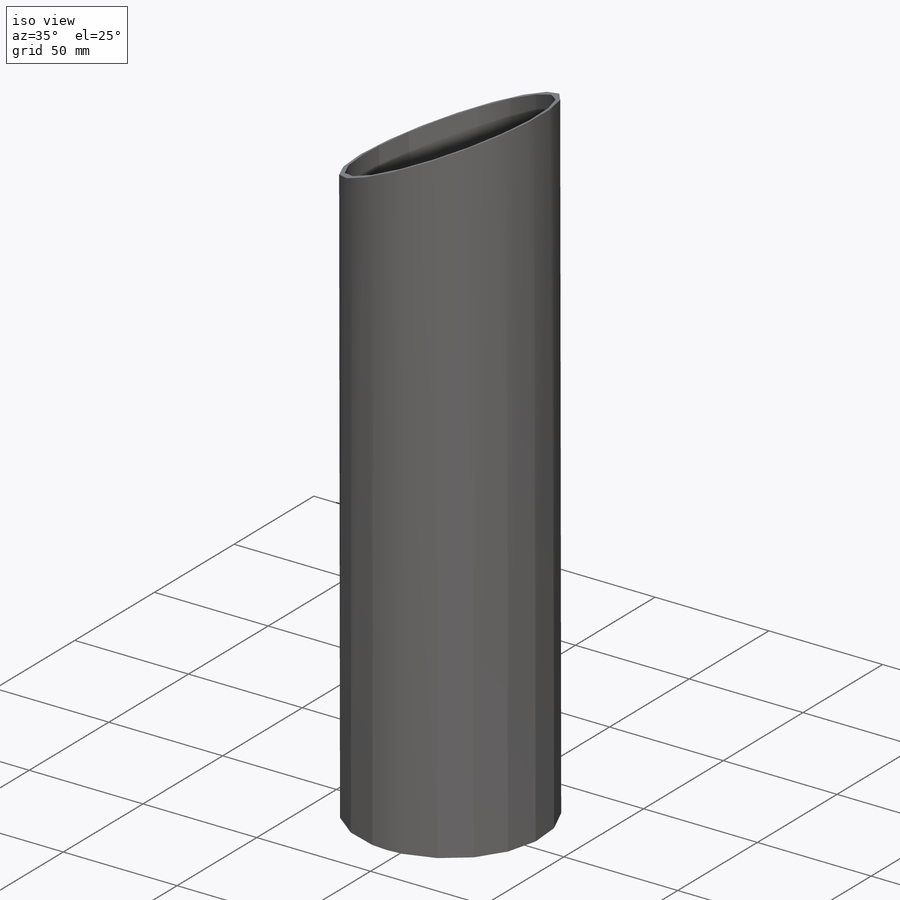
[diagram: iso view]
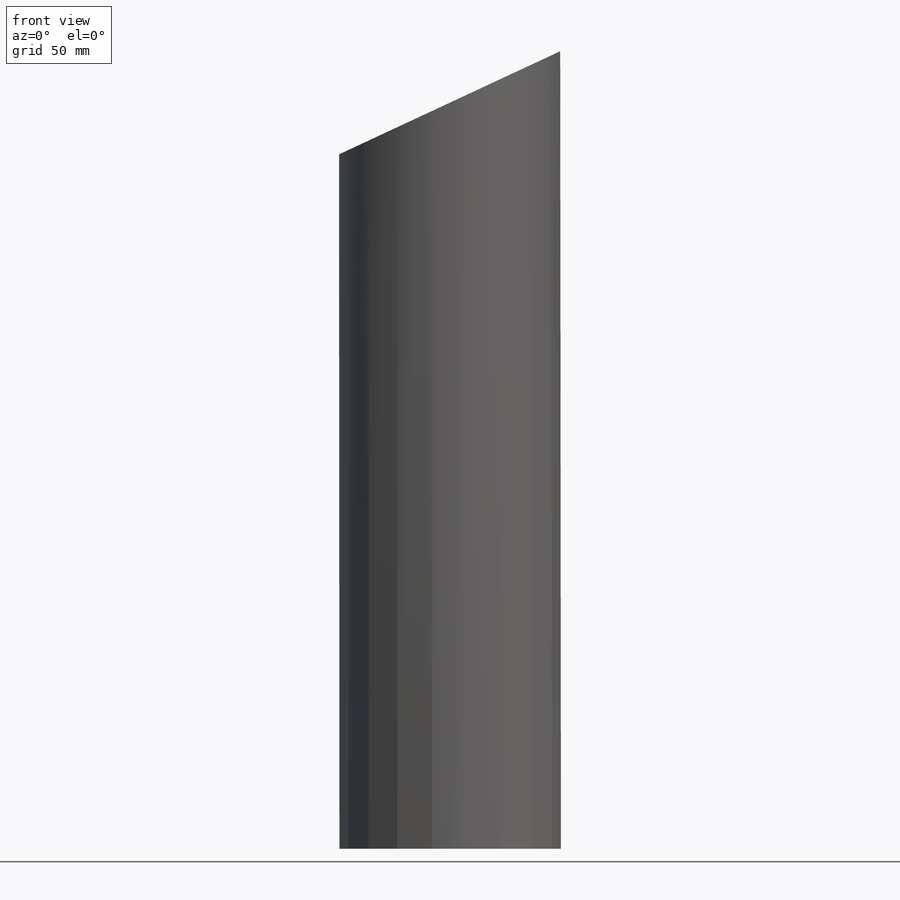
[diagram: front view]
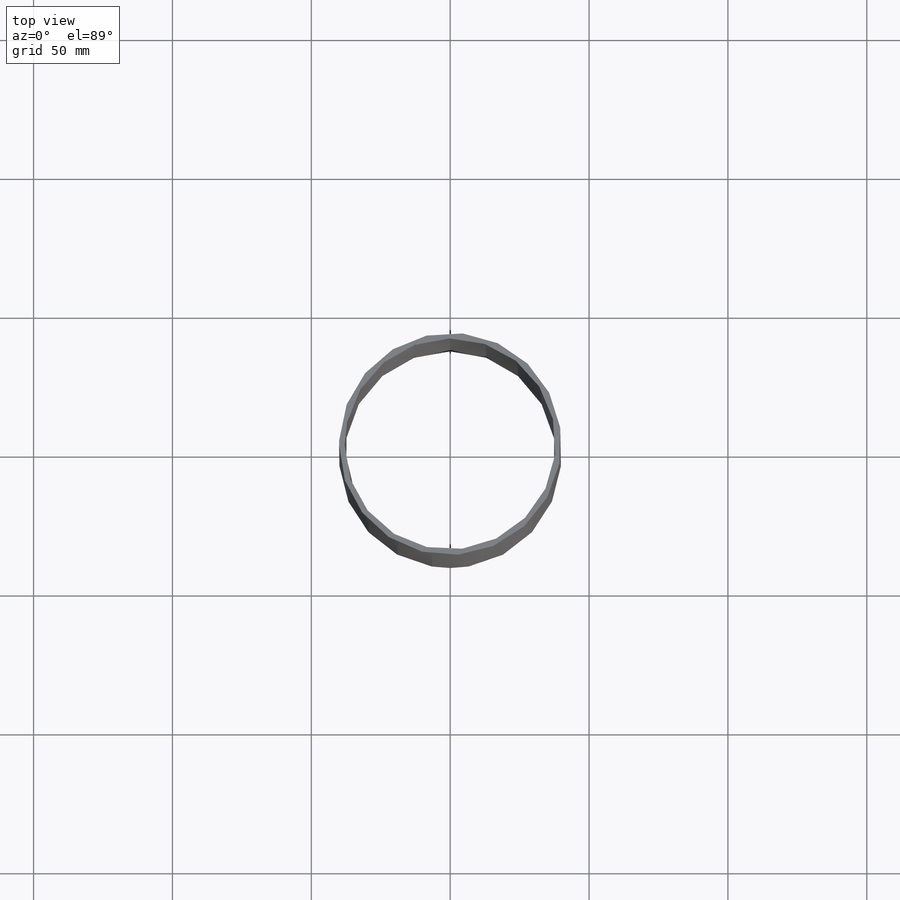
[diagram: top view]
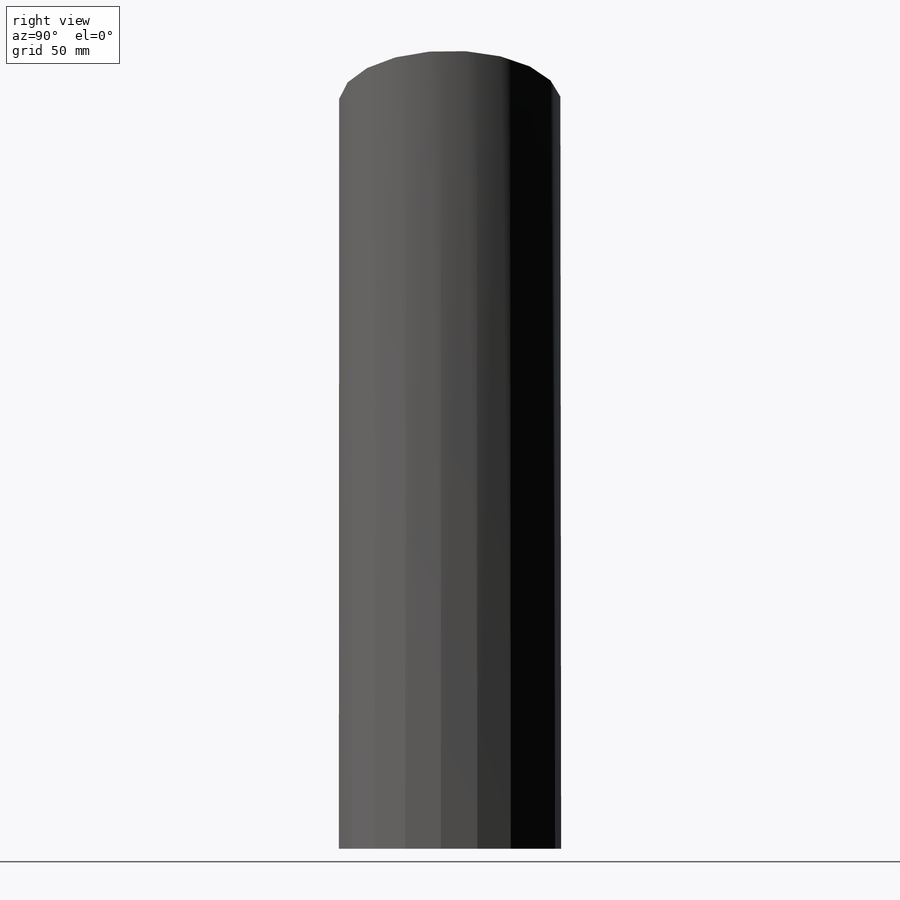
[diagram: right view]
SOLIDWORKS PART (.sldprt)
format: sldprt  version: not decoded by parser v0  size: 126,464 bytes
history: native  units: mm
features: plane x3, sketch x3, material x1, extrude x1, cut_extrude x1 (+8 scaffold rows collapsed)
feature tree (17):
  scaffold x8  (default folders/planes/origin — collapsed)
  material  "Matériau <non spécifié>"
  plane  "Plan de face"
  plane  "Plan de dessus"
  plane  "Plan de droite"
  sketch  "Esquisse1"  dims[c1.D1=80.0mm c1.D2=42.0mm c2.D1=2.0mm]
  extrude  "Boss.-Extru.1"  Depth=300mm
  sketch  "Esquisse2"  dims[c1.D2=~64.41753mm c2.D2=230.0deg c3.D2=~164.284266mm c4.D2=230.0deg c5.D2=~105.599891mm c6.D2=130.0deg c6.D5=~81.620948mm c7.D5=115.0deg c7.D2=100.0mm c8.D2=25.0deg c9.D2=~109.336487mm c9.D1=250.0mm c9.D3=80.0mm c9.D4=80.0mm]
  cut_extrude  "Enlèv. mat.-Extru.1"  Depth=50mm
  sketch  "Esquisse3"  dims[D1=~96.277499mm]
decode coverage: 5 of 5 modeling features carry decoded parameters
note: ~ marks probable driven/reference dimensions
note: suppression state not decoded; provenance and decode notes live in map.json
